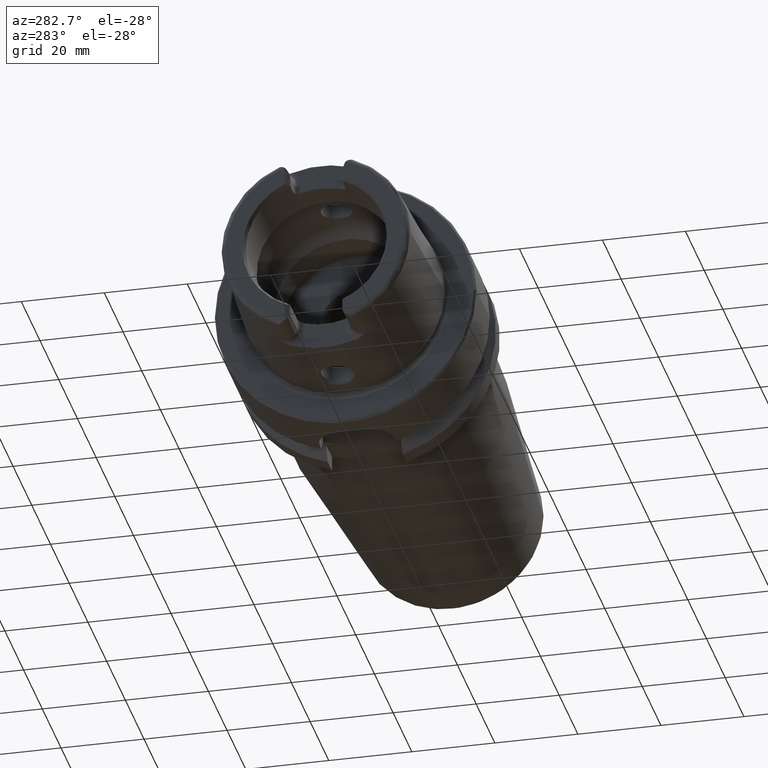
[diagram: clean part render]
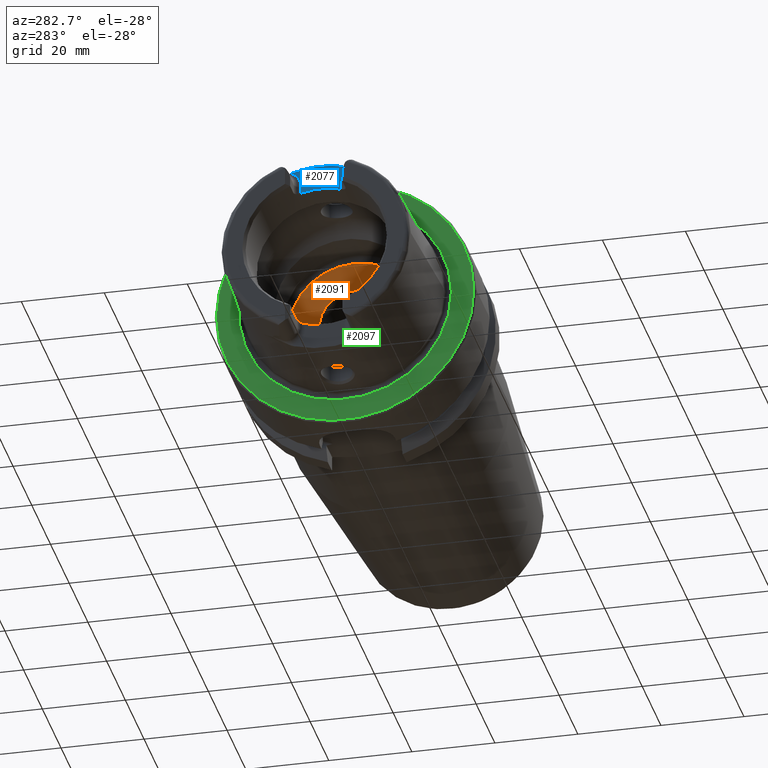
[diagram: same view with three faces highlighted in distinct colors, each labeled with its STEP entity id]
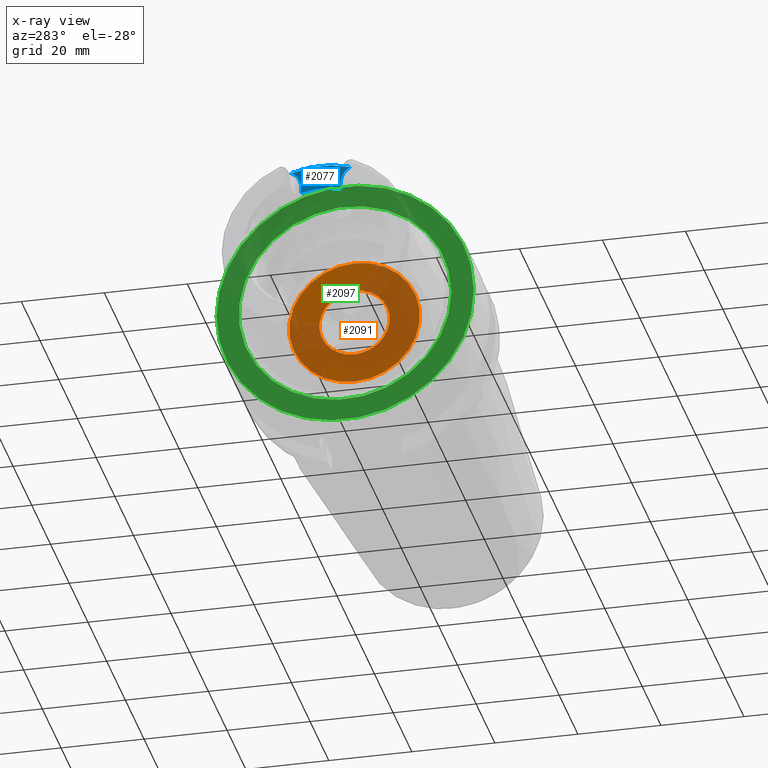
[diagram: x-ray of the same camera — body ghosted, the three highlighted faces saturated]
A machine part, auxiliary view with three faces highlighted in distinct colors.
The next image is the same camera in x-ray (body ghosted, the three faces saturated) — at least one of them is partly hidden behind the body in this view.
Their STEP definitions:

[orange] entity #2091 — the highlighted planar face has unit normal (1, 0, 0).
#115=FACE_BOUND('',#455,.T.);
#159=PLANE('',#2350);
#327=FACE_OUTER_BOUND('',#454,.T.);
#454=EDGE_LOOP('',(#1917));
#455=EDGE_LOOP('',(#1918));
#779=CIRCLE('',#2339,8.458734);
#786=CIRCLE('',#2351,15.75);
#990=VERTEX_POINT('',#4436);
#996=VERTEX_POINT('',#4456);
#1298=EDGE_CURVE('',#990,#990,#779,.T.);
#1307=EDGE_CURVE('',#996,#996,#786,.T.);
#1917=ORIENTED_EDGE('',*,*,#1307,.T.);
#1918=ORIENTED_EDGE('',*,*,#1298,.T.);
#2091=ADVANCED_FACE('',(#327,#115),#159,.F.);
#2339=AXIS2_PLACEMENT_3D('',#4437,#2902,#2903);
#2350=AXIS2_PLACEMENT_3D('',#4455,#2926,#2927);
#2351=AXIS2_PLACEMENT_3D('',#4457,#2928,#2929);
#2902=DIRECTION('center_axis',(1.,0.,0.));
#2903=DIRECTION('ref_axis',(0.,0.,1.));
#2926=DIRECTION('center_axis',(1.,0.,0.));
#2927=DIRECTION('ref_axis',(0.,0.,-1.));
#2928=DIRECTION('center_axis',(-1.,0.,0.));
#2929=DIRECTION('ref_axis',(0.,0.,1.));
#4436=CARTESIAN_POINT('',(10.,-1.03589615179389E-15,-8.458734));
#4437=CARTESIAN_POINT('Origin',(10.,0.,0.));
#4455=CARTESIAN_POINT('Origin',(10.,15.75,0.));
#4456=CARTESIAN_POINT('',(10.,-1.92881870865708E-15,-15.75));
#4457=CARTESIAN_POINT('Origin',(10.,0.,0.));

[blue] entity #2077 — the highlighted planar face has unit normal (-1, 0, 0).
#153=PLANE('',#2319);
#313=FACE_OUTER_BOUND('',#438,.T.);
#438=EDGE_LOOP('',(#1843,#1844,#1845,#1846,#1847,#1848));
#556=LINE('',#4335,#660);
#557=LINE('',#4364,#661);
#660=VECTOR('',#2805,10.);
#661=VECTOR('',#2818,10.);
#712=CIRCLE('',#2199,23.0180260521042);
#757=CIRCLE('',#2295,4.38);
#759=CIRCLE('',#2298,4.38);
#769=CIRCLE('',#2320,17.);
#885=VERTEX_POINT('',#3526);
#886=VERTEX_POINT('',#3541);
#979=VERTEX_POINT('',#4332);
#980=VERTEX_POINT('',#4334);
#981=VERTEX_POINT('',#4349);
#982=VERTEX_POINT('',#4353);
#1118=EDGE_CURVE('',#885,#886,#712,.T.);
#1265=EDGE_CURVE('',#979,#980,#556,.T.);
#1267=EDGE_CURVE('',#886,#979,#757,.T.);
#1269=EDGE_CURVE('',#981,#885,#759,.T.);
#1271=EDGE_CURVE('',#982,#981,#557,.T.);
#1287=EDGE_CURVE('',#980,#982,#769,.T.);
#1843=ORIENTED_EDGE('',*,*,#1267,.F.);
#1844=ORIENTED_EDGE('',*,*,#1118,.F.);
#1845=ORIENTED_EDGE('',*,*,#1269,.F.);
#1846=ORIENTED_EDGE('',*,*,#1271,.F.);
#1847=ORIENTED_EDGE('',*,*,#1287,.F.);
#1848=ORIENTED_EDGE('',*,*,#1265,.F.);
#2077=ADVANCED_FACE('',(#313),#153,.T.);
#2199=AXIS2_PLACEMENT_3D('',#3542,#2563,#2564);
#2295=AXIS2_PLACEMENT_3D('',#4347,#2808,#2809);
#2298=AXIS2_PLACEMENT_3D('',#4351,#2814,#2815);
#2319=AXIS2_PLACEMENT_3D('',#4412,#2861,#2862);
#2320=AXIS2_PLACEMENT_3D('',#4413,#2863,#2864);
#2563=DIRECTION('center_axis',(1.,0.,0.));
#2564=DIRECTION('ref_axis',(0.,1.,0.));
#2805=DIRECTION('',(0.,-1.58830189502884E-16,-1.));
#2808=DIRECTION('center_axis',(-1.,0.,0.));
#2809=DIRECTION('ref_axis',(0.,0.601141749549969,0.799142413433302));
#2814=DIRECTION('center_axis',(-1.,0.,0.));
#2815=DIRECTION('ref_axis',(0.,-0.601141749549969,0.799142413433301));
#2818=DIRECTION('',(0.,-1.58830189502884E-16,1.));
#2861=DIRECTION('center_axis',(-1.,0.,0.));
#2862=DIRECTION('ref_axis',(0.,0.,1.));
#2863=DIRECTION('center_axis',(-1.,0.,0.));
#2864=DIRECTION('ref_axis',(0.,1.,0.));
#3526=CARTESIAN_POINT('',(-26.,7.14127219004964,21.8822246319466));
#3541=CARTESIAN_POINT('',(-26.,-7.14127219004964,21.8822246319466));
#3542=CARTESIAN_POINT('Origin',(-26.,0.,0.));
#4332=CARTESIAN_POINT('',(-26.,-4.77,17.99));
#4334=CARTESIAN_POINT('',(-26.,-4.77,16.3170800083839));
#4335=CARTESIAN_POINT('',(-26.,-4.77,14.75));
#4347=CARTESIAN_POINT('Origin',(-26.,-9.15,17.99));
#4349=CARTESIAN_POINT('',(-26.,4.77,17.99));
#4351=CARTESIAN_POINT('Origin',(-26.,9.15,17.99));
#4353=CARTESIAN_POINT('',(-26.,4.77,16.3170800083839));
#4364=CARTESIAN_POINT('',(-26.,4.77,18.245));
#4412=CARTESIAN_POINT('Origin',(-26.,-2.22044604925031E-15,18.5));
#4413=CARTESIAN_POINT('Origin',(-26.,0.,0.));

[green] entity #2097 — the highlighted planar face has unit normal (-1, 0, 0).
#116=FACE_BOUND('',#462,.T.);
#160=PLANE('',#2366);
#333=FACE_OUTER_BOUND('',#461,.T.);
#461=EDGE_LOOP('',(#1947));
#462=EDGE_LOOP('',(#1948));
#795=CIRCLE('',#2365,25.5879092835167);
#796=CIRCLE('',#2367,31.);
#1003=VERTEX_POINT('',#4479);
#1004=VERTEX_POINT('',#4483);
#1319=EDGE_CURVE('',#1003,#1003,#795,.T.);
#1320=EDGE_CURVE('',#1004,#1004,#796,.T.);
#1947=ORIENTED_EDGE('',*,*,#1320,.F.);
#1948=ORIENTED_EDGE('',*,*,#1319,.T.);
#2097=ADVANCED_FACE('',(#333,#116),#160,.T.);
#2365=AXIS2_PLACEMENT_3D('',#4481,#2959,#2960);
#2366=AXIS2_PLACEMENT_3D('',#4482,#2961,#2962);
#2367=AXIS2_PLACEMENT_3D('',#4484,#2963,#2964);
#2959=DIRECTION('center_axis',(1.,0.,0.));
#2960=DIRECTION('ref_axis',(0.,0.,-1.));
#2961=DIRECTION('center_axis',(-1.,0.,0.));
#2962=DIRECTION('ref_axis',(0.,0.,1.));
#2963=DIRECTION('center_axis',(1.,0.,0.));
#2964=DIRECTION('ref_axis',(0.,0.,-1.));
#4479=CARTESIAN_POINT('',(-3.55618312575245E-16,-25.5879092835167,-3.13361512009315E-15));
#4481=CARTESIAN_POINT('Origin',(0.,0.,0.));
#4482=CARTESIAN_POINT('Origin',(0.,31.,0.));
#4483=CARTESIAN_POINT('',(-5.89805981832114E-16,-31.,-3.7964050773568E-15));
#4484=CARTESIAN_POINT('Origin',(0.,0.,0.));